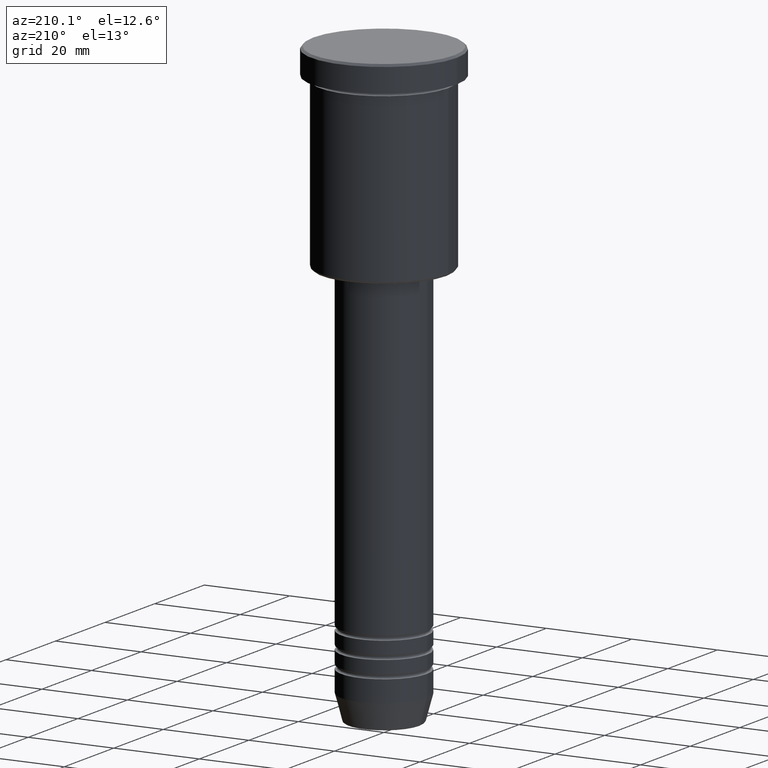
[diagram: clean part render]
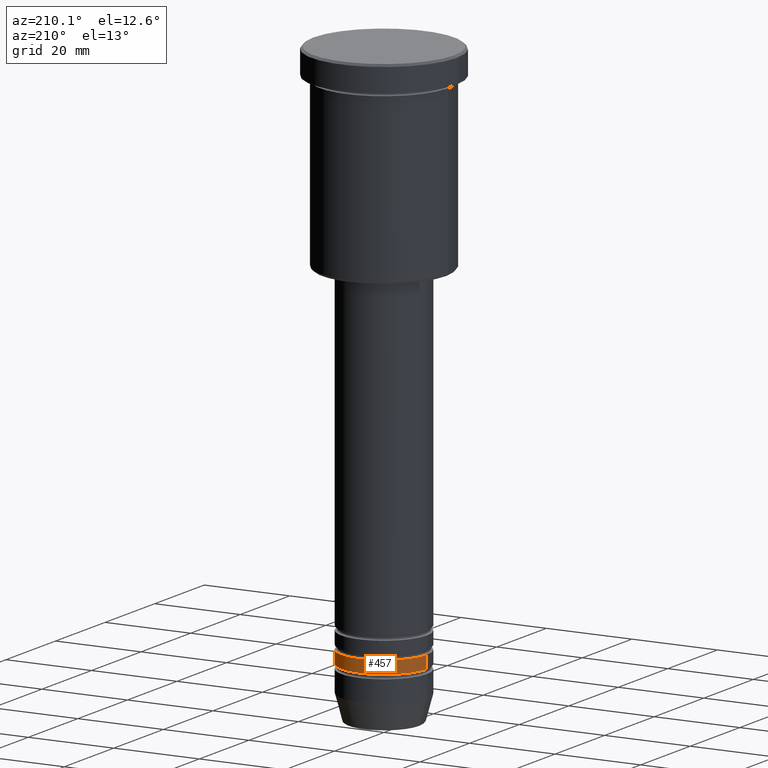
[diagram: same view with one face highlighted and labeled with its STEP entity id]
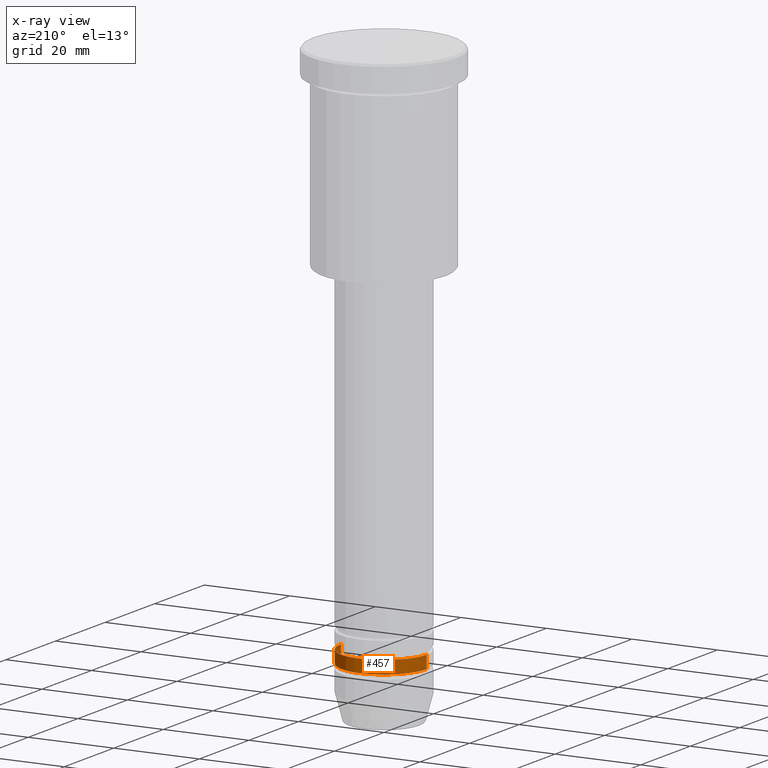
[diagram: x-ray of the same camera — body ghosted, the highlighted face saturated]
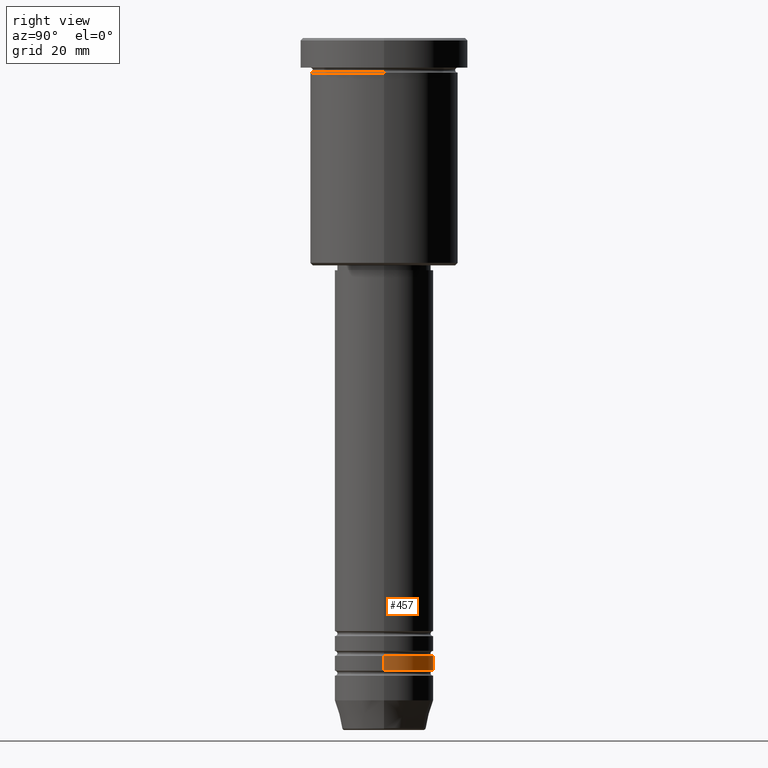
[diagram: same view with one face highlighted and labeled with its STEP entity id]
A machine part, auxiliary view. The second image highlights one B-rep face of the part: STEP entity #457.
The next image is the same camera in x-ray: the body ghosted, the highlighted face saturated — about 0% of this face is hidden behind the body in this view.
A second angle (right view) of the same face is appended — the face is thin or edge-on in the first view.
In plain terms, the highlighted cylindrical surface (partial cylindrical patch) has radius 10 mm, axis along (-0, -0, 1).
Its self-contained STEP definition (entity closure, byte-faithful):
#10 = CARTESIAN_POINT ( 'NONE',  ( 10.00000000000000178, 0.000000000000000000, -128.0000000000000000 ) ) ;
#28 = CARTESIAN_POINT ( 'NONE',  ( 0.000000000000000000, 0.000000000000000000, 0.000000000000000000 ) ) ;
#33 = VECTOR ( 'NONE', #147, 1000.000000000000000 ) ;
#59 = AXIS2_PLACEMENT_3D ( 'NONE', #1008, #1108, #649 ) ;
#86 = CARTESIAN_POINT ( 'NONE',  ( 0.000000000000000000, 0.000000000000000000, -125.0000000000000000 ) ) ;
#106 = ORIENTED_EDGE ( 'NONE', *, *, #746, .F. ) ;
#127 = ORIENTED_EDGE ( 'NONE', *, *, #145, .T. ) ;
#145 = EDGE_CURVE ( 'NONE', #316, #275, #877, .T. ) ;
#147 = DIRECTION ( 'NONE',  ( -0.000000000000000000, -0.000000000000000000, 1.000000000000000000 ) ) ;
#168 = AXIS2_PLACEMENT_3D ( 'NONE', #28, #502, #1029 ) ;
#171 = DIRECTION ( 'NONE',  ( -0.000000000000000000, -0.000000000000000000, 1.000000000000000000 ) ) ;
#173 = EDGE_LOOP ( 'NONE', ( #192, #127, #994, #106 ) ) ;
#192 = ORIENTED_EDGE ( 'NONE', *, *, #1091, .T. ) ;
#237 = LINE ( 'NONE', #1132, #33 ) ;
#253 = DIRECTION ( 'NONE',  ( -0.000000000000000000, -0.000000000000000000, 1.000000000000000000 ) ) ;
#275 = VERTEX_POINT ( 'NONE', #549 ) ;
#316 = VERTEX_POINT ( 'NONE', #555 ) ;
#323 = VERTEX_POINT ( 'NONE', #10 ) ;
#442 = AXIS2_PLACEMENT_3D ( 'NONE', #86, #253, #1088 ) ;
#457 = ADVANCED_FACE ( 'NONE', ( #509 ), #1135, .T. ) ;
#502 = DIRECTION ( 'NONE',  ( -0.000000000000000000, -0.000000000000000000, 1.000000000000000000 ) ) ;
#509 = FACE_OUTER_BOUND ( 'NONE', #173, .T. ) ;
#549 = CARTESIAN_POINT ( 'NONE',  ( -10.00000000000000000, 1.224646799147353256E-15, -125.0000000000000000 ) ) ;
#555 = CARTESIAN_POINT ( 'NONE',  ( -10.00000000000000178, 1.224646799147353454E-15, -128.0000000000000000 ) ) ;
#556 = CIRCLE ( 'NONE', #59, 10.00000000000000178 ) ;
#649 = DIRECTION ( 'NONE',  ( 1.000000000000000000, 0.000000000000000000, 0.000000000000000000 ) ) ;
#746 = EDGE_CURVE ( 'NONE', #323, #1113, #237, .T. ) ;
#769 = VECTOR ( 'NONE', #171, 1000.000000000000000 ) ;
#789 = CARTESIAN_POINT ( 'NONE',  ( 10.00000000000000000, 0.000000000000000000, -125.0000000000000000 ) ) ;
#877 = LINE ( 'NONE', #1157, #769 ) ;
#994 = ORIENTED_EDGE ( 'NONE', *, *, #1172, .F. ) ;
#1008 = CARTESIAN_POINT ( 'NONE',  ( 0.000000000000000000, 0.000000000000000000, -128.0000000000000000 ) ) ;
#1021 = CIRCLE ( 'NONE', #442, 10.00000000000000000 ) ;
#1029 = DIRECTION ( 'NONE',  ( 1.000000000000000000, 0.000000000000000000, 0.000000000000000000 ) ) ;
#1088 = DIRECTION ( 'NONE',  ( 1.000000000000000000, 0.000000000000000000, 0.000000000000000000 ) ) ;
#1091 = EDGE_CURVE ( 'NONE', #323, #316, #556, .T. ) ;
#1108 = DIRECTION ( 'NONE',  ( -0.000000000000000000, -0.000000000000000000, 1.000000000000000000 ) ) ;
#1113 = VERTEX_POINT ( 'NONE', #789 ) ;
#1132 = CARTESIAN_POINT ( 'NONE',  ( 10.00000000000000178, 0.000000000000000000, 0.000000000000000000 ) ) ;
#1135 = CYLINDRICAL_SURFACE ( 'NONE', #168, 10.00000000000000178 ) ;
#1157 = CARTESIAN_POINT ( 'NONE',  ( -10.00000000000000178, 1.224646799147353454E-15, 0.000000000000000000 ) ) ;
#1172 = EDGE_CURVE ( 'NONE', #1113, #275, #1021, .T. ) ;